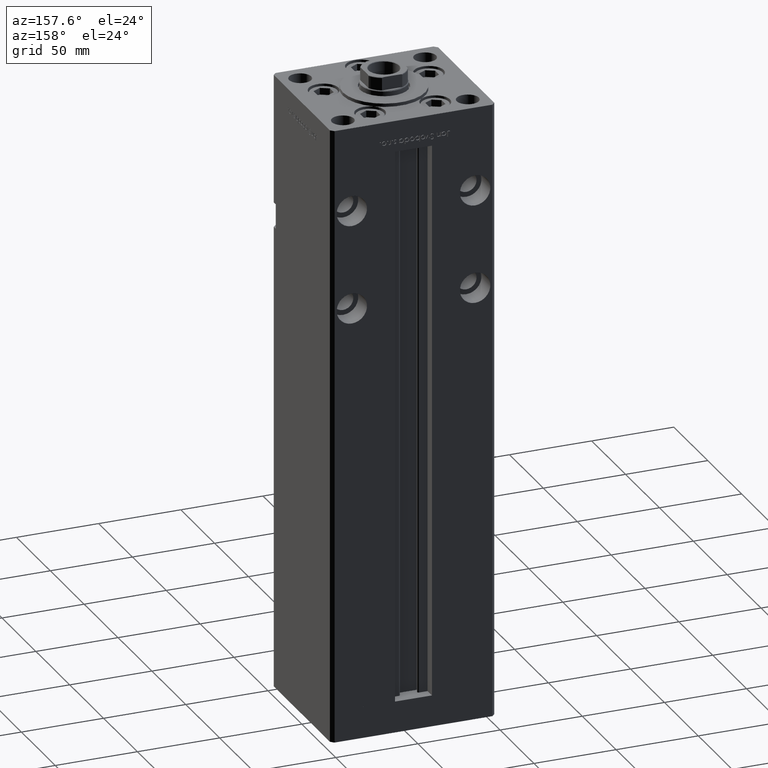
[diagram: clean part render]
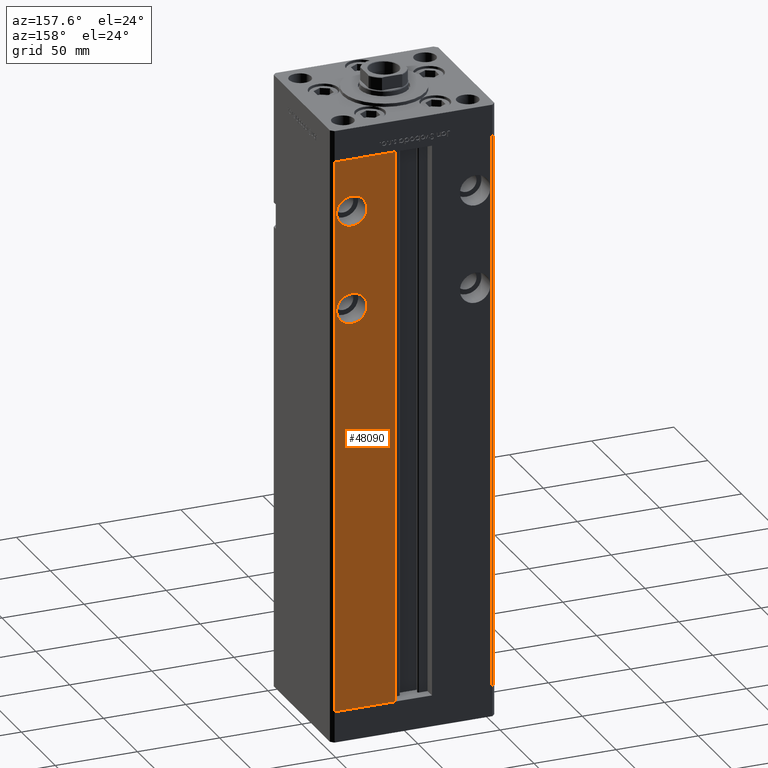
[diagram: same view with one face highlighted and labeled with its STEP entity id]
A machine part, auxiliary view. The second image highlights one B-rep face of the part: STEP entity #48090.
In plain terms, the highlighted planar face has unit normal (0, -1, 0).
Its self-contained STEP definition (entity closure, byte-faithful):
#1360 = CARTESIAN_POINT ( 'NONE',  ( 48.00000000000000711, 43.50000000000000000, 0.000000000000000000 ) ) ;
#2540 = DIRECTION ( 'NONE',  ( 0.000000000000000000, 0.000000000000000000, -1.000000000000000000 ) ) ;
#2565 = ORIENTED_EDGE ( 'NONE', *, *, #46847, .F. ) ;
#2746 = CARTESIAN_POINT ( 'NONE',  ( 37.50000000000000000, 43.50000000000000000, 255.7500000000000284 ) ) ;
#3486 = EDGE_LOOP ( 'NONE', ( #2565, #19522 ) ) ;
#3529 = AXIS2_PLACEMENT_3D ( 'NONE', #38933, #6365, #42970 ) ;
#4669 = EDGE_LOOP ( 'NONE', ( #15013, #28881, #49437, #10320 ) ) ;
#4933 = DIRECTION ( 'NONE',  ( 0.000000000000000000, 1.000000000000000000, 0.000000000000000000 ) ) ;
#5151 = LINE ( 'NONE', #8660, #5290 ) ;
#5290 = VECTOR ( 'NONE', #33672, 1000.000000000000000 ) ;
#6365 = DIRECTION ( 'NONE',  ( 0.000000000000000000, -1.000000000000000000, 0.000000000000000000 ) ) ;
#6393 = DIRECTION ( 'NONE',  ( 0.000000000000000000, 0.000000000000000000, -1.000000000000000000 ) ) ;
#7287 = EDGE_CURVE ( 'NONE', #51379, #21146, #30446, .T. ) ;
#7871 = AXIS2_PLACEMENT_3D ( 'NONE', #30616, #22561, #35468 ) ;
#8660 = CARTESIAN_POINT ( 'NONE',  ( -11.24999999999999645, 43.50000000000000000, 338.5000000000000000 ) ) ;
#9097 = EDGE_LOOP ( 'NONE', ( #50127, #10232 ) ) ;
#9935 = CARTESIAN_POINT ( 'NONE',  ( 11.24999999999999645, 43.50000000000000000, 0.000000000000000000 ) ) ;
#10232 = ORIENTED_EDGE ( 'NONE', *, *, #34134, .F. ) ;
#10320 = ORIENTED_EDGE ( 'NONE', *, *, #21334, .T. ) ;
#10428 = DIRECTION ( 'NONE',  ( 0.000000000000000000, 1.000000000000000000, -0.000000000000000000 ) ) ;
#12530 = VERTEX_POINT ( 'NONE', #34284 ) ;
#15013 = ORIENTED_EDGE ( 'NONE', *, *, #7287, .T. ) ;
#17540 = EDGE_CURVE ( 'NONE', #39551, #12530, #24922, .T. ) ;
#17851 = DIRECTION ( 'NONE',  ( 0.000000000000000000, 0.000000000000000000, 1.000000000000000000 ) ) ;
#18112 = CARTESIAN_POINT ( 'NONE',  ( 37.50000000000000000, 43.50000000000000000, 306.5000000000000000 ) ) ;
#19522 = ORIENTED_EDGE ( 'NONE', *, *, #23601, .F. ) ;
#20171 = CARTESIAN_POINT ( 'NONE',  ( 48.00000000000000711, 43.50000000000000000, 338.5000000000000000 ) ) ;
#21146 = VERTEX_POINT ( 'NONE', #21282 ) ;
#21282 = CARTESIAN_POINT ( 'NONE',  ( 11.24999999999999645, 43.50000000000000000, 0.000000000000000000 ) ) ;
#21334 = EDGE_CURVE ( 'NONE', #32214, #51379, #52981, .T. ) ;
#22561 = DIRECTION ( 'NONE',  ( 0.000000000000000000, 1.000000000000000000, 0.000000000000000000 ) ) ;
#22782 = PLANE ( 'NONE',  #3529 ) ;
#22995 = CARTESIAN_POINT ( 'NONE',  ( 37.50000000000000000, 43.50000000000000000, 246.5000000000000284 ) ) ;
#23601 = EDGE_CURVE ( 'NONE', #33030, #24051, #31040, .T. ) ;
#24051 = VERTEX_POINT ( 'NONE', #44288 ) ;
#24922 = CIRCLE ( 'NONE', #44679, 9.250000000000008882 ) ;
#25304 = AXIS2_PLACEMENT_3D ( 'NONE', #22995, #39409, #2540 ) ;
#26081 = DIRECTION ( 'NONE',  ( -0.000000000000000000, -0.000000000000000000, 1.000000000000000000 ) ) ;
#26536 = FACE_BOUND ( 'NONE', #3486, .T. ) ;
#26566 = CARTESIAN_POINT ( 'NONE',  ( 37.50000000000000000, 43.50000000000000000, 246.5000000000000284 ) ) ;
#27314 = EDGE_CURVE ( 'NONE', #49259, #32214, #5151, .T. ) ;
#28358 = AXIS2_PLACEMENT_3D ( 'NONE', #18112, #4933, #17851 ) ;
#28881 = ORIENTED_EDGE ( 'NONE', *, *, #43451, .T. ) ;
#29846 = LINE ( 'NONE', #9935, #37024 ) ;
#30446 = LINE ( 'NONE', #50384, #33336 ) ;
#30616 = CARTESIAN_POINT ( 'NONE',  ( 37.50000000000000000, 43.50000000000000000, 306.5000000000000000 ) ) ;
#31040 = CIRCLE ( 'NONE', #7871, 9.249999999999980460 ) ;
#31904 = FACE_BOUND ( 'NONE', #9097, .T. ) ;
#32214 = VERTEX_POINT ( 'NONE', #39138 ) ;
#32518 = DIRECTION ( 'NONE',  ( -0.000000000000000000, -0.000000000000000000, -1.000000000000000000 ) ) ;
#33021 = CIRCLE ( 'NONE', #25304, 9.250000000000008882 ) ;
#33030 = VERTEX_POINT ( 'NONE', #40271 ) ;
#33336 = VECTOR ( 'NONE', #46868, 1000.000000000000000 ) ;
#33672 = DIRECTION ( 'NONE',  ( 1.000000000000000000, 0.000000000000000000, 0.000000000000000000 ) ) ;
#34134 = EDGE_CURVE ( 'NONE', #12530, #39551, #33021, .T. ) ;
#34284 = CARTESIAN_POINT ( 'NONE',  ( 37.50000000000000000, 43.50000000000000000, 237.2500000000000284 ) ) ;
#35468 = DIRECTION ( 'NONE',  ( 0.000000000000000000, 0.000000000000000000, 1.000000000000000000 ) ) ;
#37024 = VECTOR ( 'NONE', #26081, 1000.000000000000000 ) ;
#38933 = CARTESIAN_POINT ( 'NONE',  ( -11.24999999999999645, 43.50000000000000000, 338.5000000000000000 ) ) ;
#39138 = CARTESIAN_POINT ( 'NONE',  ( 48.00000000000000711, 43.50000000000000000, 338.5000000000000000 ) ) ;
#39194 = FACE_OUTER_BOUND ( 'NONE', #4669, .T. ) ;
#39409 = DIRECTION ( 'NONE',  ( 0.000000000000000000, 1.000000000000000000, -0.000000000000000000 ) ) ;
#39551 = VERTEX_POINT ( 'NONE', #2746 ) ;
#40271 = CARTESIAN_POINT ( 'NONE',  ( 37.50000000000000000, 43.50000000000000000, 297.2500000000000000 ) ) ;
#42970 = DIRECTION ( 'NONE',  ( 0.000000000000000000, -0.000000000000000000, -1.000000000000000000 ) ) ;
#43451 = EDGE_CURVE ( 'NONE', #21146, #49259, #29846, .T. ) ;
#43862 = CIRCLE ( 'NONE', #28358, 9.249999999999980460 ) ;
#44288 = CARTESIAN_POINT ( 'NONE',  ( 37.50000000000000000, 43.50000000000000000, 315.7500000000000000 ) ) ;
#44679 = AXIS2_PLACEMENT_3D ( 'NONE', #26566, #10428, #6393 ) ;
#46685 = CARTESIAN_POINT ( 'NONE',  ( 11.24999999999998934, 43.50000000000000000, 338.5000000000000000 ) ) ;
#46847 = EDGE_CURVE ( 'NONE', #24051, #33030, #43862, .T. ) ;
#46868 = DIRECTION ( 'NONE',  ( -1.000000000000000000, 0.000000000000000000, 0.000000000000000000 ) ) ;
#48090 = ADVANCED_FACE ( 'NONE', ( #31904, #26536, #39194 ), #22782, .F. ) ;
#49259 = VERTEX_POINT ( 'NONE', #46685 ) ;
#49437 = ORIENTED_EDGE ( 'NONE', *, *, #27314, .T. ) ;
#50127 = ORIENTED_EDGE ( 'NONE', *, *, #17540, .F. ) ;
#50384 = CARTESIAN_POINT ( 'NONE',  ( -11.24999999999999645, 43.50000000000000000, 0.000000000000000000 ) ) ;
#51379 = VERTEX_POINT ( 'NONE', #1360 ) ;
#51646 = VECTOR ( 'NONE', #32518, 1000.000000000000000 ) ;
#52981 = LINE ( 'NONE', #20171, #51646 ) ;